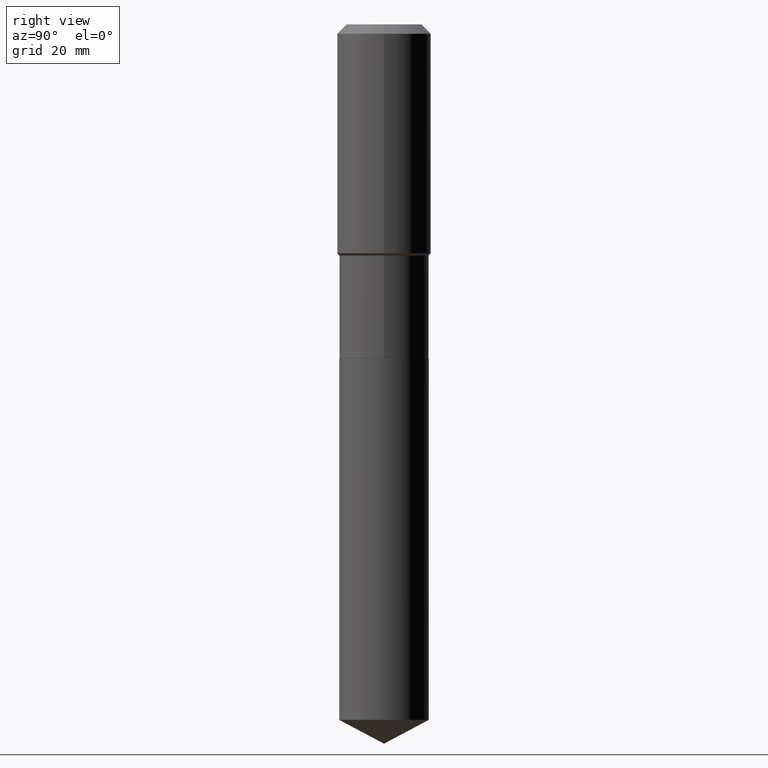
[diagram: clean part render]
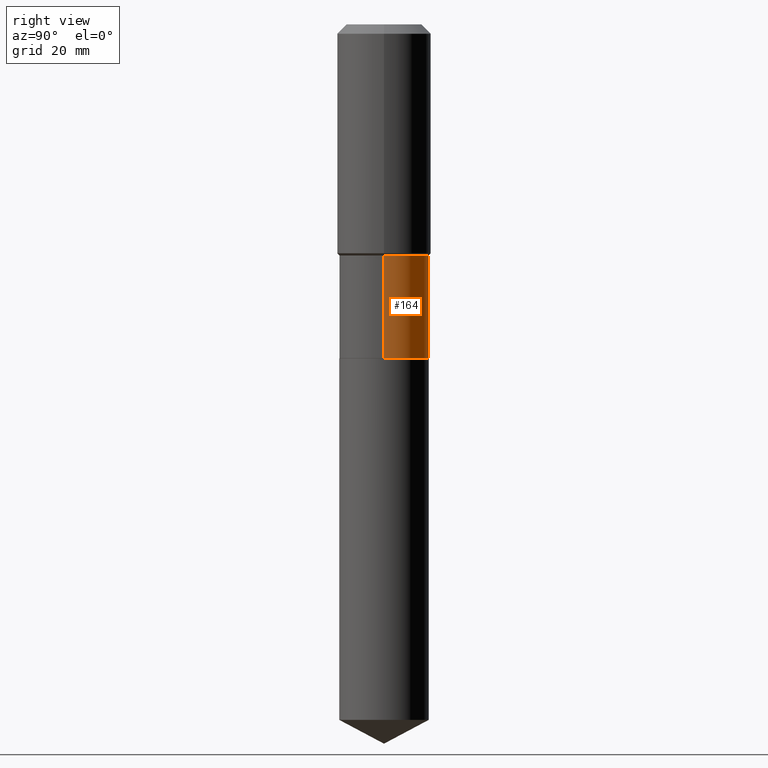
[diagram: same view with one face highlighted and labeled with its STEP entity id]
A machine part, right view. The second image highlights one B-rep face of the part: STEP entity #164.
In plain terms, the highlighted cylindrical surface (partial cylindrical patch) has radius 9.525 mm, axis along (-0, 0, 1).
Its self-contained STEP definition (entity closure, byte-faithful):
#1 = CARTESIAN_POINT ( 'NONE',  ( -0.3749999999999999445, -5.598055329271928860E-15, -1.935500000000000220 ) ) ;
#48 = VERTEX_POINT ( 'NONE', #375 ) ;
#59 = VERTEX_POINT ( 'NONE', #413 ) ;
#62 = LINE ( 'NONE', #291, #374 ) ;
#64 = CIRCLE ( 'NONE', #320, 0.3750000000000000555 ) ;
#106 = VERTEX_POINT ( 'NONE', #1 ) ;
#107 = VECTOR ( 'NONE', #420, 39.37007874015748143 ) ;
#115 = DIRECTION ( 'NONE',  ( 1.000000000000000000, -6.982962677686266711E-15, 4.876176775795935793E-29 ) ) ;
#134 = CARTESIAN_POINT ( 'NONE',  ( -0.3749999999999999445, 2.664535259100375303E-15, -1.844600658845589318E-29 ) ) ;
#143 = CARTESIAN_POINT ( 'NONE',  ( 0.3749999999999999445, -9.376373135463257755E-15, -1.935500000000000220 ) ) ;
#164 = ADVANCED_FACE ( 'NONE', ( #252 ), #263, .T. ) ;
#166 = AXIS2_PLACEMENT_3D ( 'NONE', #380, #196, #480 ) ;
#179 = ORIENTED_EDGE ( 'NONE', *, *, #267, .T. ) ;
#190 = CIRCLE ( 'NONE', #166, 0.3749999999999999445 ) ;
#196 = DIRECTION ( 'NONE',  ( -2.445468806185136597E-29, 3.491481338843145583E-15, 1.000000000000000000 ) ) ;
#211 = DIRECTION ( 'NONE',  ( -2.445468806185136597E-29, 3.491481338843145583E-15, 1.000000000000000000 ) ) ;
#219 = ORIENTED_EDGE ( 'NONE', *, *, #349, .T. ) ;
#252 = FACE_OUTER_BOUND ( 'NONE', #365, .T. ) ;
#261 = ORIENTED_EDGE ( 'NONE', *, *, #418, .F. ) ;
#263 = CYLINDRICAL_SURFACE ( 'NONE', #482, 0.3749999999999999445 ) ;
#267 = EDGE_CURVE ( 'NONE', #48, #59, #64, .T. ) ;
#281 = LINE ( 'NONE', #134, #107 ) ;
#290 = CARTESIAN_POINT ( 'NONE',  ( 6.841198985302919360E-29, -9.767419045413699798E-15, -2.797499999999999876 ) ) ;
#291 = CARTESIAN_POINT ( 'NONE',  ( 0.3749999999999999445, -2.618611004132349622E-15, 1.828566290923475642E-29 ) ) ;
#300 = CARTESIAN_POINT ( 'NONE',  ( 0.000000000000000000, 0.000000000000000000, 0.000000000000000000 ) ) ;
#320 = AXIS2_PLACEMENT_3D ( 'NONE', #290, #211, #356 ) ;
#349 = EDGE_CURVE ( 'NONE', #59, #106, #281, .T. ) ;
#356 = DIRECTION ( 'NONE',  ( 1.000000000000000000, -6.982962677686266711E-15, 0.000000000000000000 ) ) ;
#363 = EDGE_CURVE ( 'NONE', #48, #477, #62, .T. ) ;
#365 = EDGE_LOOP ( 'NONE', ( #179, #219, #261, #447 ) ) ;
#374 = VECTOR ( 'NONE', #427, 39.37007874015748143 ) ;
#375 = CARTESIAN_POINT ( 'NONE',  ( 0.3750000000000000555, -1.238603004954604981E-14, -2.797499999999999876 ) ) ;
#380 = CARTESIAN_POINT ( 'NONE',  ( 4.733204874371332632E-29, -6.757762131330909316E-15, -1.935500000000000220 ) ) ;
#413 = CARTESIAN_POINT ( 'NONE',  ( -0.3750000000000000555, -5.598055329271928071E-15, -2.797499999999999876 ) ) ;
#418 = EDGE_CURVE ( 'NONE', #477, #106, #190, .T. ) ;
#420 = DIRECTION ( 'NONE',  ( -2.445468806185136877E-29, 3.491481338843145188E-15, 1.000000000000000000 ) ) ;
#427 = DIRECTION ( 'NONE',  ( -2.445468806185136877E-29, 3.491481338843145188E-15, 1.000000000000000000 ) ) ;
#445 = DIRECTION ( 'NONE',  ( -2.445468806185136597E-29, 3.491481338843145583E-15, 1.000000000000000000 ) ) ;
#447 = ORIENTED_EDGE ( 'NONE', *, *, #363, .F. ) ;
#477 = VERTEX_POINT ( 'NONE', #143 ) ;
#480 = DIRECTION ( 'NONE',  ( 1.000000000000000000, -6.982962677686263555E-15, 0.000000000000000000 ) ) ;
#482 = AXIS2_PLACEMENT_3D ( 'NONE', #300, #445, #115 ) ;